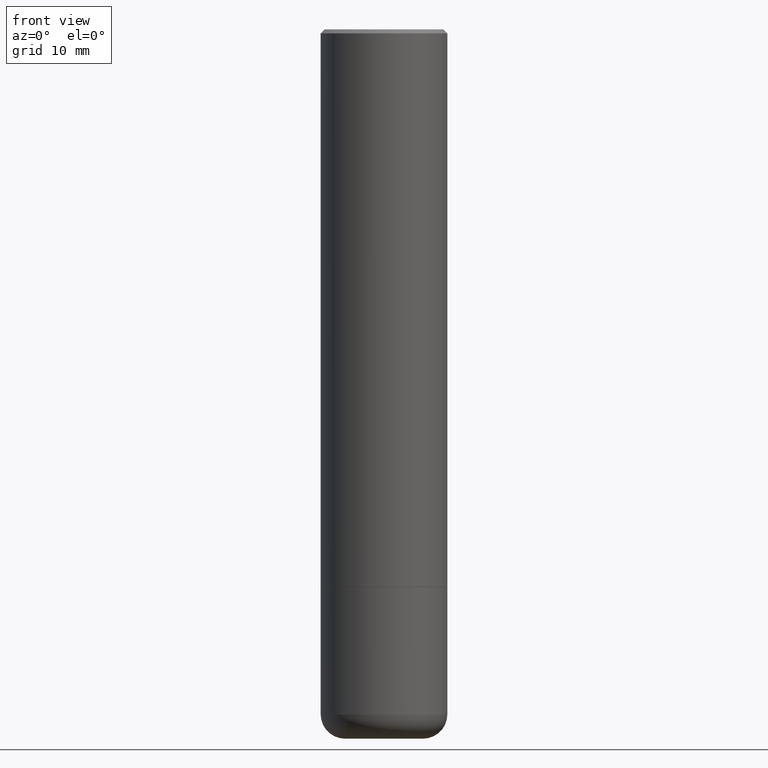
[diagram: clean part render]
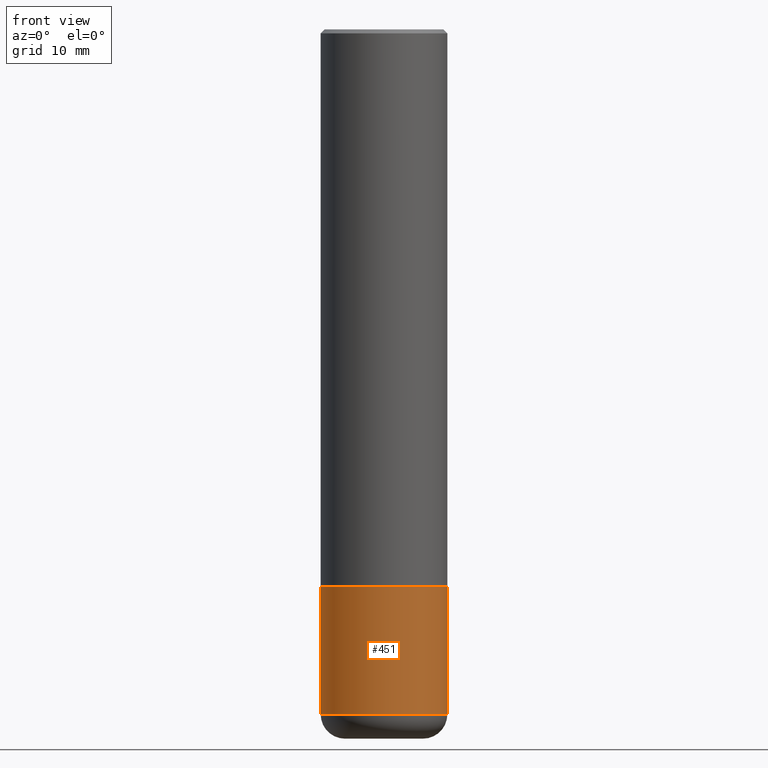
[diagram: same view with one face highlighted and labeled with its STEP entity id]
A machine part, front view. The second image highlights one B-rep face of the part: STEP entity #451.
In plain terms, the highlighted cylindrical surface (partial cylindrical patch) has radius 7.9375 mm, axis along (-0, 0, 1).
Its self-contained STEP definition (entity closure, byte-faithful):
#2 = ORIENTED_EDGE ( 'NONE', *, *, #265, .F. ) ;
#13 = DIRECTION ( 'NONE',  ( 1.000000000000000000, -6.982962677686266711E-15, 4.876176775795936353E-29 ) ) ;
#51 = CYLINDRICAL_SURFACE ( 'NONE', #144, 0.3124999999999997224 ) ;
#66 = CARTESIAN_POINT ( 'NONE',  ( 8.265695738820817389E-29, -1.180122287867913601E-14, -3.380004569232299083 ) ) ;
#73 = EDGE_CURVE ( 'NONE', #114, #332, #151, .T. ) ;
#83 = CARTESIAN_POINT ( 'NONE',  ( -0.3125000000000000000, -8.480952230998579063E-15, -3.380004569232299083 ) ) ;
#88 = FACE_OUTER_BOUND ( 'NONE', #365, .T. ) ;
#99 = EDGE_CURVE ( 'NONE', #221, #114, #315, .T. ) ;
#112 = AXIS2_PLACEMENT_3D ( 'NONE', #66, #333, #364 ) ;
#114 = VERTEX_POINT ( 'NONE', #405 ) ;
#122 = CARTESIAN_POINT ( 'NONE',  ( 6.725039217009124520E-29, -9.601573681818649859E-15, -2.750000000000000000 ) ) ;
#144 = AXIS2_PLACEMENT_3D ( 'NONE', #195, #349, #13 ) ;
#151 = LINE ( 'NONE', #453, #457 ) ;
#182 = VERTEX_POINT ( 'NONE', #222 ) ;
#195 = CARTESIAN_POINT ( 'NONE',  ( 0.000000000000000000, 0.000000000000000000, 0.000000000000000000 ) ) ;
#204 = LINE ( 'NONE', #267, #458 ) ;
#221 = VERTEX_POINT ( 'NONE', #83 ) ;
#222 = CARTESIAN_POINT ( 'NONE',  ( -0.3124999999999994449, -8.480952230998582218E-15, -2.750000000000000000 ) ) ;
#235 = CARTESIAN_POINT ( 'NONE',  ( 0.3124999999999994449, -1.178374951859560505E-14, -2.750000000000000000 ) ) ;
#265 = EDGE_CURVE ( 'NONE', #182, #332, #369, .T. ) ;
#267 = CARTESIAN_POINT ( 'NONE',  ( -0.3124999999999997224, 2.220446049250311109E-15, -1.537167215704656831E-29 ) ) ;
#315 = CIRCLE ( 'NONE', #112, 0.3125000000000000000 ) ;
#322 = DIRECTION ( 'NONE',  ( -2.445468806185136877E-29, 3.491481338843145188E-15, 1.000000000000000000 ) ) ;
#332 = VERTEX_POINT ( 'NONE', #235 ) ;
#333 = DIRECTION ( 'NONE',  ( -2.445468806185136597E-29, 3.491481338843145583E-15, 1.000000000000000000 ) ) ;
#347 = DIRECTION ( 'NONE',  ( -2.445468806185136597E-29, 3.491481338843145583E-15, 1.000000000000000000 ) ) ;
#349 = DIRECTION ( 'NONE',  ( -2.445468806185136597E-29, 3.491481338843145583E-15, 1.000000000000000000 ) ) ;
#363 = EDGE_CURVE ( 'NONE', #221, #182, #204, .T. ) ;
#364 = DIRECTION ( 'NONE',  ( 1.000000000000000000, -6.982962677686269077E-15, 0.000000000000000000 ) ) ;
#365 = EDGE_LOOP ( 'NONE', ( #426, #488, #373, #2 ) ) ;
#369 = CIRCLE ( 'NONE', #424, 0.3124999999999994449 ) ;
#373 = ORIENTED_EDGE ( 'NONE', *, *, #73, .T. ) ;
#405 = CARTESIAN_POINT ( 'NONE',  ( 0.3125000000000000000, -1.398339871545609435E-14, -3.380004569232299083 ) ) ;
#424 = AXIS2_PLACEMENT_3D ( 'NONE', #122, #347, #462 ) ;
#426 = ORIENTED_EDGE ( 'NONE', *, *, #363, .F. ) ;
#451 = ADVANCED_FACE ( 'NONE', ( #88 ), #51, .T. ) ;
#453 = CARTESIAN_POINT ( 'NONE',  ( 0.3124999999999997224, -2.182175836776956375E-15, 1.523805242436228674E-29 ) ) ;
#457 = VECTOR ( 'NONE', #322, 39.37007874015748143 ) ;
#458 = VECTOR ( 'NONE', #465, 39.37007874015748143 ) ;
#462 = DIRECTION ( 'NONE',  ( 1.000000000000000000, -6.982962677686269077E-15, 0.000000000000000000 ) ) ;
#465 = DIRECTION ( 'NONE',  ( -2.445468806185136877E-29, 3.491481338843145188E-15, 1.000000000000000000 ) ) ;
#488 = ORIENTED_EDGE ( 'NONE', *, *, #99, .T. ) ;